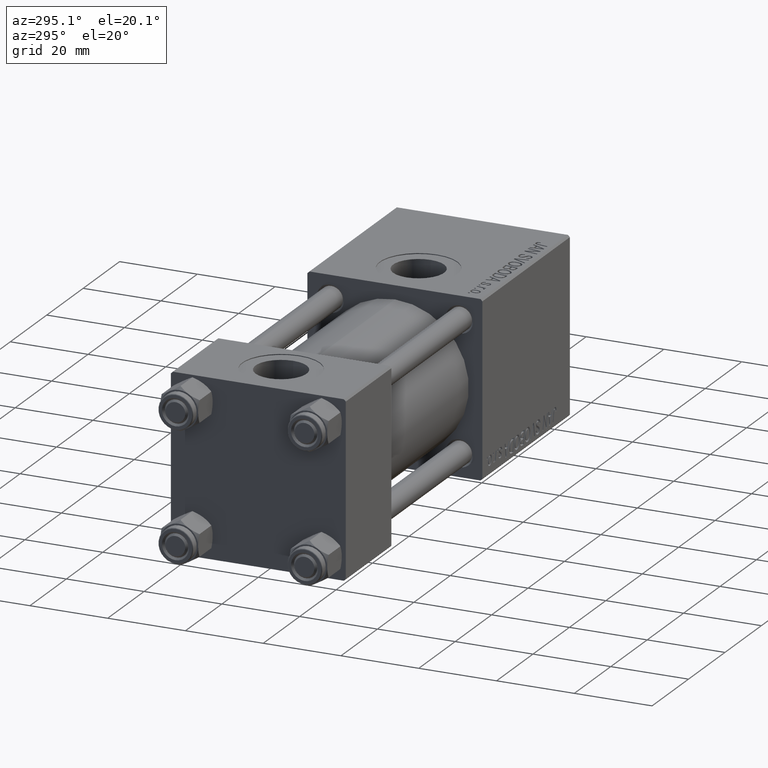
[diagram: clean part render]
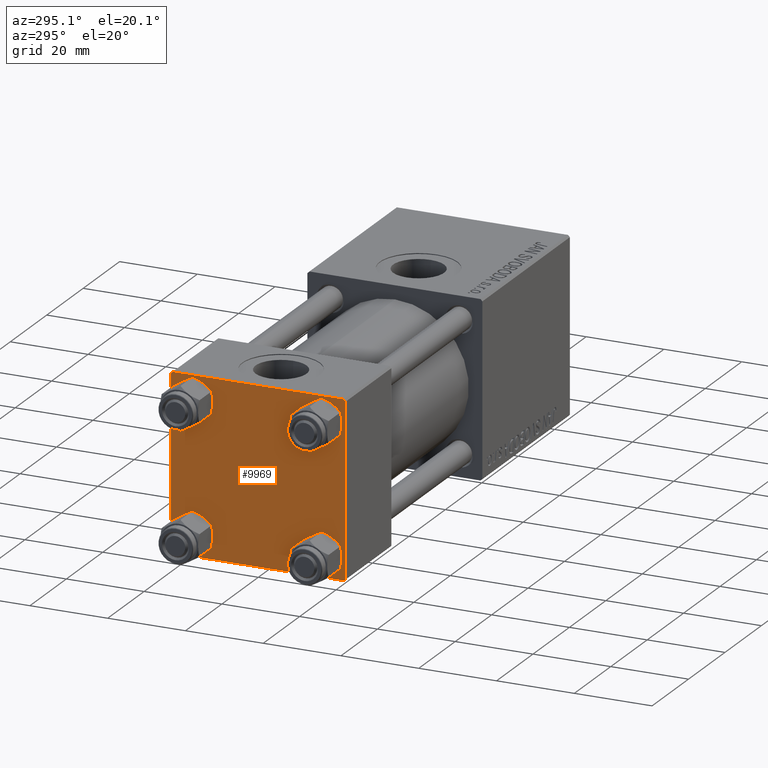
[diagram: same view with one face highlighted and labeled with its STEP entity id]
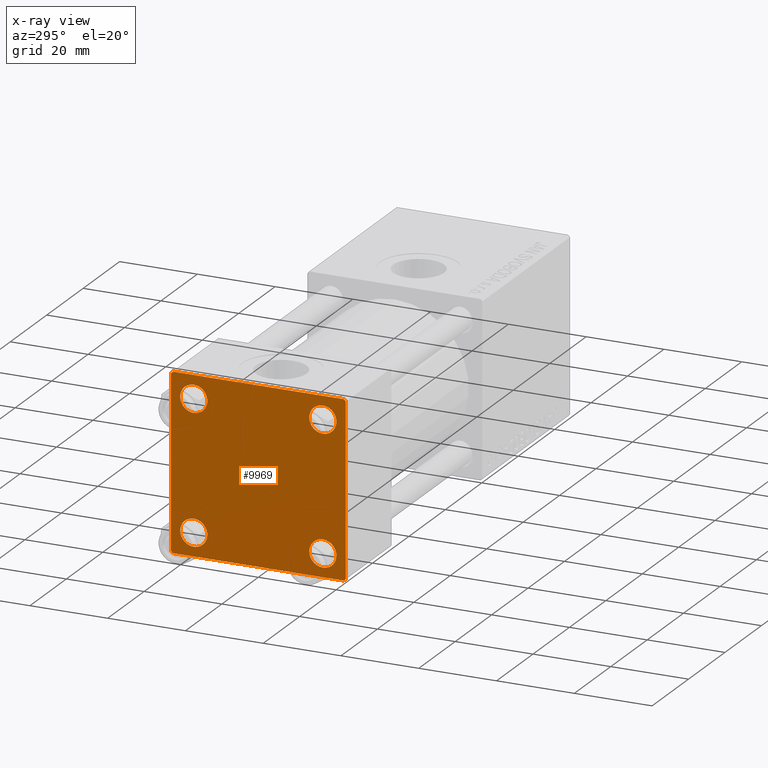
[diagram: x-ray of the same camera — body ghosted, the highlighted face saturated]
A machine part, auxiliary view. The second image highlights one B-rep face of the part: STEP entity #9969.
The next image is the same camera in x-ray: the body ghosted, the highlighted face saturated — about 0% of this face is hidden behind the body in this view.
In plain terms, the highlighted planar face has unit normal (-1, 0, 0).
Its self-contained STEP definition (entity closure, byte-faithful):
#698 = CARTESIAN_POINT ( 'NONE',  ( 0.000000000000000000, -22.50000000000000000, -21.99999999999997158 ) ) ;
#931 = AXIS2_PLACEMENT_3D ( 'NONE', #23097, #38267, #3529 ) ;
#1134 = ORIENTED_EDGE ( 'NONE', *, *, #29787, .F. ) ;
#2383 = FACE_BOUND ( 'NONE', #35943, .T. ) ;
#3135 = CARTESIAN_POINT ( 'NONE',  ( -0.000000000000000000, -22.24999999999984013, 22.25000000000015277 ) ) ;
#3305 = DIRECTION ( 'NONE',  ( 1.000000000000000000, -0.000000000000000000, 0.000000000000000000 ) ) ;
#3529 = DIRECTION ( 'NONE',  ( 0.000000000000000000, 0.000000000000000000, 1.000000000000000000 ) ) ;
#4135 = CARTESIAN_POINT ( 'NONE',  ( 0.000000000000000000, 16.59999999999999787, -20.10000000000000142 ) ) ;
#4322 = AXIS2_PLACEMENT_3D ( 'NONE', #29210, #24150, #24398 ) ;
#4481 = CIRCLE ( 'NONE', #41719, 3.499999999999996003 ) ;
#4861 = EDGE_CURVE ( 'NONE', #18196, #14600, #38183, .T. ) ;
#5523 = CARTESIAN_POINT ( 'NONE',  ( 0.000000000000000000, -16.59999999999999076, 16.60000000000000853 ) ) ;
#5714 = ORIENTED_EDGE ( 'NONE', *, *, #17246, .T. ) ;
#5715 = CARTESIAN_POINT ( 'NONE',  ( 0.000000000000000000, 22.50000000000000000, 21.99999999999999645 ) ) ;
#6059 = CIRCLE ( 'NONE', #19009, 3.499999999999996003 ) ;
#6236 = CARTESIAN_POINT ( 'NONE',  ( 0.000000000000000000, 22.50000000000000000, 22.50000000000000355 ) ) ;
#6337 = CARTESIAN_POINT ( 'NONE',  ( 0.000000000000000000, 22.50000000000000000, 22.50000000000000355 ) ) ;
#6450 = PLANE ( 'NONE',  #19712 ) ;
#7127 = DIRECTION ( 'NONE',  ( 0.000000000000000000, 0.000000000000000000, 1.000000000000000000 ) ) ;
#7654 = CARTESIAN_POINT ( 'NONE',  ( 0.000000000000000000, 16.59999999999999787, -16.60000000000000497 ) ) ;
#8546 = DIRECTION ( 'NONE',  ( 0.000000000000000000, 0.000000000000000000, -1.000000000000000000 ) ) ;
#8958 = CARTESIAN_POINT ( 'NONE',  ( 0.000000000000000000, 22.25000000000014566, -22.24999999999984013 ) ) ;
#9157 = CARTESIAN_POINT ( 'NONE',  ( 0.000000000000000000, -21.99999999999997868, 22.50000000000000000 ) ) ;
#9724 = LINE ( 'NONE', #41137, #23236 ) ;
#9779 = CARTESIAN_POINT ( 'NONE',  ( 0.000000000000000000, 16.59999999999999787, -13.10000000000000675 ) ) ;
#9969 = ADVANCED_FACE ( 'NONE', ( #2383, #44990, #40934, #48304, #17625 ), #6450, .T. ) ;
#9979 = CARTESIAN_POINT ( 'NONE',  ( 0.000000000000000000, -22.25000000000014566, -22.24999999999984013 ) ) ;
#10318 = CARTESIAN_POINT ( 'NONE',  ( 0.000000000000000000, -16.59999999999999076, -16.60000000000000853 ) ) ;
#10463 = LINE ( 'NONE', #9979, #46025 ) ;
#10602 = ORIENTED_EDGE ( 'NONE', *, *, #15455, .T. ) ;
#10685 = VERTEX_POINT ( 'NONE', #25996 ) ;
#11208 = VERTEX_POINT ( 'NONE', #9779 ) ;
#11389 = ORIENTED_EDGE ( 'NONE', *, *, #25938, .T. ) ;
#11541 = VERTEX_POINT ( 'NONE', #47508 ) ;
#11934 = VERTEX_POINT ( 'NONE', #21840 ) ;
#12020 = VERTEX_POINT ( 'NONE', #698 ) ;
#12397 = ORIENTED_EDGE ( 'NONE', *, *, #43324, .F. ) ;
#12960 = VERTEX_POINT ( 'NONE', #15056 ) ;
#12997 = ORIENTED_EDGE ( 'NONE', *, *, #26907, .T. ) ;
#13570 = DIRECTION ( 'NONE',  ( -1.000000000000000000, 0.000000000000000000, -0.000000000000000000 ) ) ;
#13584 = DIRECTION ( 'NONE',  ( 0.000000000000000000, 0.000000000000000000, 1.000000000000000000 ) ) ;
#13814 = DIRECTION ( 'NONE',  ( -0.000000000000000000, 0.000000000000000000, 1.000000000000000000 ) ) ;
#14081 = VECTOR ( 'NONE', #8546, 1000.000000000000000 ) ;
#14230 = VERTEX_POINT ( 'NONE', #45676 ) ;
#14471 = EDGE_CURVE ( 'NONE', #49494, #14230, #21339, .T. ) ;
#14600 = VERTEX_POINT ( 'NONE', #48072 ) ;
#14616 = DIRECTION ( 'NONE',  ( 0.000000000000000000, 0.000000000000000000, 1.000000000000000000 ) ) ;
#14884 = CIRCLE ( 'NONE', #43205, 3.499999999999996003 ) ;
#15056 = CARTESIAN_POINT ( 'NONE',  ( 0.000000000000000000, -21.99999999999997158, -22.50000000000000711 ) ) ;
#15455 = EDGE_CURVE ( 'NONE', #20104, #11541, #14884, .T. ) ;
#15662 = VECTOR ( 'NONE', #31119, 1000.000000000000114 ) ;
#15746 = ORIENTED_EDGE ( 'NONE', *, *, #21627, .T. ) ;
#17161 = CARTESIAN_POINT ( 'NONE',  ( 0.000000000000000000, -22.50000000000000000, 22.50000000000000000 ) ) ;
#17246 = EDGE_CURVE ( 'NONE', #14600, #18196, #6059, .T. ) ;
#17625 = FACE_OUTER_BOUND ( 'NONE', #47156, .T. ) ;
#17691 = DIRECTION ( 'NONE',  ( 1.000000000000000000, -0.000000000000000000, 0.000000000000000000 ) ) ;
#18196 = VERTEX_POINT ( 'NONE', #42158 ) ;
#19009 = AXIS2_PLACEMENT_3D ( 'NONE', #5523, #21014, #36452 ) ;
#19126 = VECTOR ( 'NONE', #39873, 1000.000000000000000 ) ;
#19437 = EDGE_CURVE ( 'NONE', #20039, #25753, #4481, .T. ) ;
#19469 = ORIENTED_EDGE ( 'NONE', *, *, #29160, .T. ) ;
#19712 = AXIS2_PLACEMENT_3D ( 'NONE', #33842, #13570, #13814 ) ;
#20039 = VERTEX_POINT ( 'NONE', #44565 ) ;
#20104 = VERTEX_POINT ( 'NONE', #41245 ) ;
#20265 = EDGE_CURVE ( 'NONE', #25753, #20039, #47454, .T. ) ;
#20409 = CARTESIAN_POINT ( 'NONE',  ( 0.000000000000000000, 16.59999999999999787, 13.10000000000000675 ) ) ;
#20633 = EDGE_CURVE ( 'NONE', #14230, #41505, #35603, .T. ) ;
#21014 = DIRECTION ( 'NONE',  ( 1.000000000000000000, -0.000000000000000000, 0.000000000000000000 ) ) ;
#21099 = CIRCLE ( 'NONE', #37237, 3.499999999999996003 ) ;
#21339 = LINE ( 'NONE', #6337, #28664 ) ;
#21603 = LINE ( 'NONE', #30864, #15662 ) ;
#21627 = EDGE_CURVE ( 'NONE', #41505, #12960, #9724, .T. ) ;
#21730 = DIRECTION ( 'NONE',  ( 0.000000000000000000, -1.000000000000000000, -7.709882115452476934E-17 ) ) ;
#21740 = EDGE_LOOP ( 'NONE', ( #10602, #12997 ) ) ;
#21840 = CARTESIAN_POINT ( 'NONE',  ( 0.000000000000000000, 21.99999999999999289, 22.50000000000000355 ) ) ;
#22457 = LINE ( 'NONE', #3135, #26699 ) ;
#22531 = EDGE_LOOP ( 'NONE', ( #44493, #33782 ) ) ;
#23097 = CARTESIAN_POINT ( 'NONE',  ( 0.000000000000000000, -16.59999999999999076, 16.60000000000000853 ) ) ;
#23152 = DIRECTION ( 'NONE',  ( 0.000000000000000000, 0.000000000000000000, 1.000000000000000000 ) ) ;
#23236 = VECTOR ( 'NONE', #48263, 1000.000000000000000 ) ;
#24150 = DIRECTION ( 'NONE',  ( 1.000000000000000000, -0.000000000000000000, 0.000000000000000000 ) ) ;
#24398 = DIRECTION ( 'NONE',  ( 0.000000000000000000, 0.000000000000000000, 1.000000000000000000 ) ) ;
#24614 = CARTESIAN_POINT ( 'NONE',  ( 0.000000000000000000, -16.59999999999999076, -16.60000000000000853 ) ) ;
#25753 = VERTEX_POINT ( 'NONE', #20409 ) ;
#25782 = ORIENTED_EDGE ( 'NONE', *, *, #38959, .T. ) ;
#25783 = DIRECTION ( 'NONE',  ( 0.000000000000000000, 0.000000000000000000, 1.000000000000000000 ) ) ;
#25938 = EDGE_CURVE ( 'NONE', #12960, #12020, #10463, .T. ) ;
#25996 = CARTESIAN_POINT ( 'NONE',  ( 0.000000000000000000, -22.50000000000000000, 22.00000000000000000 ) ) ;
#26657 = CIRCLE ( 'NONE', #33915, 3.499999999999996003 ) ;
#26699 = VECTOR ( 'NONE', #29319, 999.9999999999998863 ) ;
#26907 = EDGE_CURVE ( 'NONE', #11541, #20104, #26657, .T. ) ;
#27250 = VERTEX_POINT ( 'NONE', #4135 ) ;
#27949 = EDGE_CURVE ( 'NONE', #10685, #35459, #22457, .T. ) ;
#28664 = VECTOR ( 'NONE', #36781, 1000.000000000000000 ) ;
#29160 = EDGE_CURVE ( 'NONE', #11208, #27250, #21099, .T. ) ;
#29210 = CARTESIAN_POINT ( 'NONE',  ( 0.000000000000000000, 16.59999999999999787, -16.60000000000000497 ) ) ;
#29319 = DIRECTION ( 'NONE',  ( -0.000000000000000000, 0.7071067811865525687, 0.7071067811865425767 ) ) ;
#29787 = EDGE_CURVE ( 'NONE', #11934, #35459, #33130, .T. ) ;
#30864 = CARTESIAN_POINT ( 'NONE',  ( 0.000000000000000000, 22.24999999999999645, 22.24999999999999645 ) ) ;
#31119 = DIRECTION ( 'NONE',  ( 0.000000000000000000, 0.7071067811865474617, -0.7071067811865474617 ) ) ;
#32192 = ORIENTED_EDGE ( 'NONE', *, *, #14471, .T. ) ;
#32607 = DIRECTION ( 'NONE',  ( 1.000000000000000000, -0.000000000000000000, 0.000000000000000000 ) ) ;
#33130 = LINE ( 'NONE', #6236, #45329 ) ;
#33782 = ORIENTED_EDGE ( 'NONE', *, *, #20265, .T. ) ;
#33842 = CARTESIAN_POINT ( 'NONE',  ( 0.000000000000000000, 0.000000000000000000, 0.000000000000000000 ) ) ;
#33915 = AXIS2_PLACEMENT_3D ( 'NONE', #10318, #17691, #14616 ) ;
#35047 = DIRECTION ( 'NONE',  ( 1.000000000000000000, -0.000000000000000000, 0.000000000000000000 ) ) ;
#35459 = VERTEX_POINT ( 'NONE', #9157 ) ;
#35603 = LINE ( 'NONE', #8958, #19126 ) ;
#35943 = EDGE_LOOP ( 'NONE', ( #37246, #5714 ) ) ;
#36452 = DIRECTION ( 'NONE',  ( 0.000000000000000000, 0.000000000000000000, 1.000000000000000000 ) ) ;
#36781 = DIRECTION ( 'NONE',  ( 0.000000000000000000, 0.000000000000000000, -1.000000000000000000 ) ) ;
#37165 = DIRECTION ( 'NONE',  ( 1.000000000000000000, -0.000000000000000000, 0.000000000000000000 ) ) ;
#37237 = AXIS2_PLACEMENT_3D ( 'NONE', #7654, #35047, #23152 ) ;
#37246 = ORIENTED_EDGE ( 'NONE', *, *, #4861, .T. ) ;
#37983 = EDGE_LOOP ( 'NONE', ( #19469, #49702 ) ) ;
#38183 = CIRCLE ( 'NONE', #931, 3.499999999999996003 ) ;
#38267 = DIRECTION ( 'NONE',  ( 1.000000000000000000, -0.000000000000000000, 0.000000000000000000 ) ) ;
#38859 = CARTESIAN_POINT ( 'NONE',  ( 0.000000000000000000, 21.99999999999999289, -22.49999999999999645 ) ) ;
#38887 = EDGE_CURVE ( 'NONE', #27250, #11208, #45509, .T. ) ;
#38959 = EDGE_CURVE ( 'NONE', #11934, #49494, #21603, .T. ) ;
#39193 = ORIENTED_EDGE ( 'NONE', *, *, #20633, .T. ) ;
#39873 = DIRECTION ( 'NONE',  ( -0.000000000000000000, -0.7071067811865426878, -0.7071067811865524577 ) ) ;
#40934 = FACE_BOUND ( 'NONE', #37983, .T. ) ;
#41137 = CARTESIAN_POINT ( 'NONE',  ( 0.000000000000000000, 22.50000000000000000, -22.49999999999999645 ) ) ;
#41245 = CARTESIAN_POINT ( 'NONE',  ( 0.000000000000000000, -16.59999999999999076, -13.10000000000001030 ) ) ;
#41505 = VERTEX_POINT ( 'NONE', #38859 ) ;
#41719 = AXIS2_PLACEMENT_3D ( 'NONE', #45920, #3305, #7127 ) ;
#42158 = CARTESIAN_POINT ( 'NONE',  ( 0.000000000000000000, -16.59999999999999076, 20.10000000000000853 ) ) ;
#43205 = AXIS2_PLACEMENT_3D ( 'NONE', #24614, #37165, #25783 ) ;
#43268 = LINE ( 'NONE', #17161, #14081 ) ;
#43324 = EDGE_CURVE ( 'NONE', #10685, #12020, #43268, .T. ) ;
#43743 = CARTESIAN_POINT ( 'NONE',  ( 0.000000000000000000, 16.59999999999999787, 16.60000000000000497 ) ) ;
#44493 = ORIENTED_EDGE ( 'NONE', *, *, #19437, .T. ) ;
#44565 = CARTESIAN_POINT ( 'NONE',  ( 0.000000000000000000, 16.59999999999999787, 20.10000000000000142 ) ) ;
#44708 = DIRECTION ( 'NONE',  ( 0.000000000000000000, -0.7071067811865426878, 0.7071067811865524577 ) ) ;
#44990 = FACE_BOUND ( 'NONE', #21740, .T. ) ;
#45003 = ORIENTED_EDGE ( 'NONE', *, *, #27949, .T. ) ;
#45329 = VECTOR ( 'NONE', #21730, 1000.000000000000000 ) ;
#45509 = CIRCLE ( 'NONE', #4322, 3.499999999999996003 ) ;
#45676 = CARTESIAN_POINT ( 'NONE',  ( 0.000000000000000000, 22.50000000000000000, -21.99999999999996803 ) ) ;
#45920 = CARTESIAN_POINT ( 'NONE',  ( 0.000000000000000000, 16.59999999999999787, 16.60000000000000497 ) ) ;
#46025 = VECTOR ( 'NONE', #44708, 1000.000000000000000 ) ;
#47156 = EDGE_LOOP ( 'NONE', ( #32192, #39193, #15746, #11389, #12397, #45003, #1134, #25782 ) ) ;
#47454 = CIRCLE ( 'NONE', #49081, 3.499999999999996003 ) ;
#47508 = CARTESIAN_POINT ( 'NONE',  ( 0.000000000000000000, -16.59999999999999076, -20.10000000000000497 ) ) ;
#48072 = CARTESIAN_POINT ( 'NONE',  ( 0.000000000000000000, -16.59999999999999076, 13.10000000000001030 ) ) ;
#48263 = DIRECTION ( 'NONE',  ( 0.000000000000000000, -1.000000000000000000, -2.312964634635742957E-16 ) ) ;
#48304 = FACE_BOUND ( 'NONE', #22531, .T. ) ;
#49081 = AXIS2_PLACEMENT_3D ( 'NONE', #43743, #32607, #13584 ) ;
#49494 = VERTEX_POINT ( 'NONE', #5715 ) ;
#49702 = ORIENTED_EDGE ( 'NONE', *, *, #38887, .T. ) ;